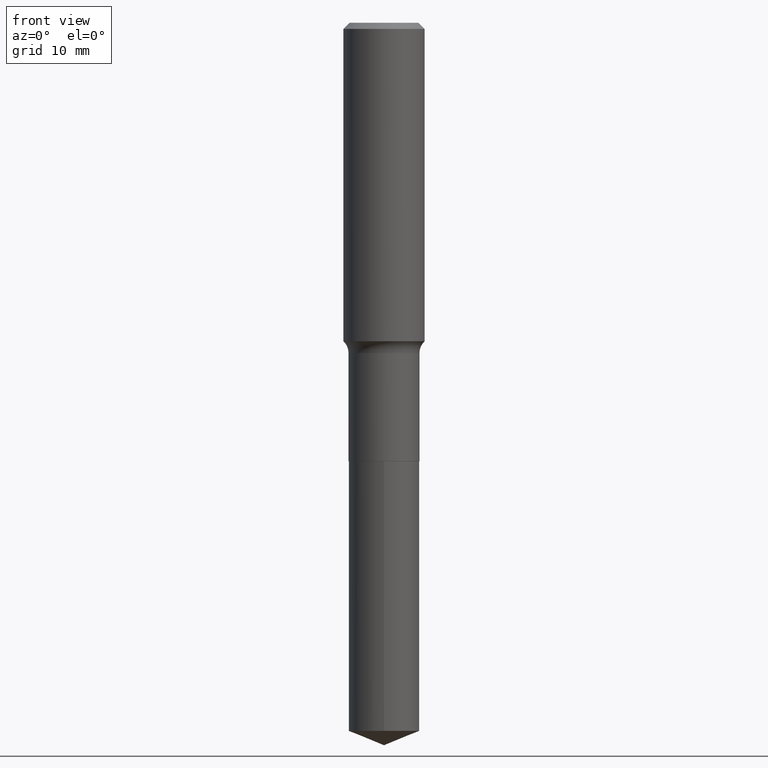
[diagram: clean part render]
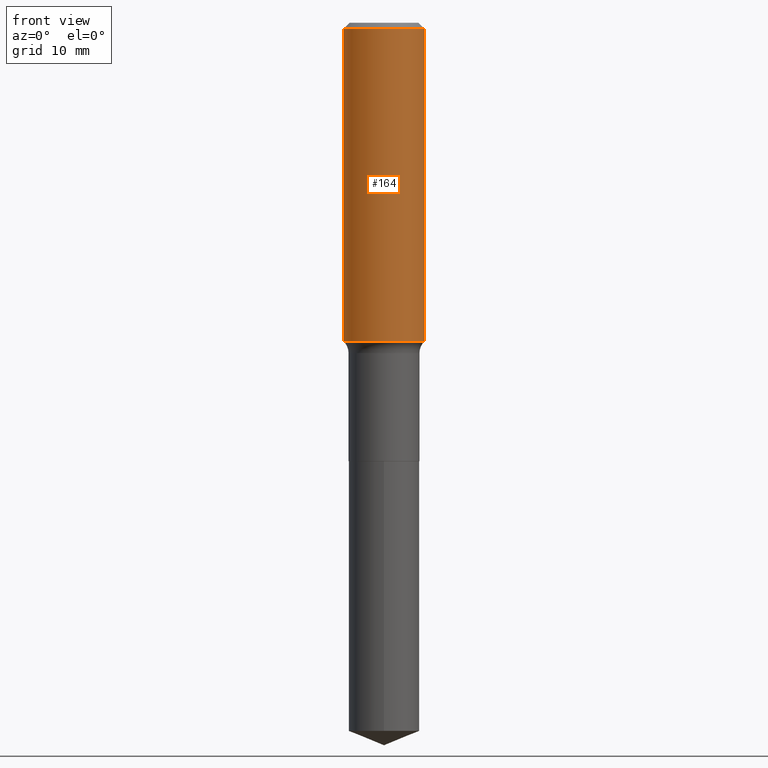
[diagram: same view with one face highlighted and labeled with its STEP entity id]
A machine part, front view. The second image highlights one B-rep face of the part: STEP entity #164.
In plain terms, the highlighted cylindrical surface (partial cylindrical patch) has radius 5 mm, axis along (-0, 0, 1).
Its self-contained STEP definition (entity closure, byte-faithful):
#25 = ORIENTED_EDGE ( 'NONE', *, *, #135, .T. ) ;
#42 = VERTEX_POINT ( 'NONE', #227 ) ;
#48 = EDGE_CURVE ( 'NONE', #153, #395, #440, .T. ) ;
#69 = DIRECTION ( 'NONE',  ( 1.000000000000000000, -6.982962677686266711E-15, 0.000000000000000000 ) ) ;
#85 = AXIS2_PLACEMENT_3D ( 'NONE', #469, #473, #130 ) ;
#93 = CARTESIAN_POINT ( 'NONE',  ( 0.1968500000000001082, -1.374596203102542397E-15, 9.598753983154305062E-30 ) ) ;
#102 = CARTESIAN_POINT ( 'NONE',  ( 0.000000000000000000, 0.000000000000000000, 0.000000000000000000 ) ) ;
#113 = CIRCLE ( 'NONE', #379, 0.1968500000000000527 ) ;
#130 = DIRECTION ( 'NONE',  ( 1.000000000000000000, -6.982962677686265922E-15, 0.000000000000000000 ) ) ;
#135 = EDGE_CURVE ( 'NONE', #395, #200, #330, .T. ) ;
#142 = ORIENTED_EDGE ( 'NONE', *, *, #282, .F. ) ;
#153 = VERTEX_POINT ( 'NONE', #179 ) ;
#164 = ADVANCED_FACE ( 'NONE', ( #219 ), #195, .T. ) ;
#179 = CARTESIAN_POINT ( 'NONE',  ( -0.1968500000000002192, -3.994653248450672985E-15, -1.544718731213796659 ) ) ;
#184 = EDGE_CURVE ( 'NONE', #42, #200, #113, .T. ) ;
#195 = CYLINDRICAL_SURFACE ( 'NONE', #335, 0.1968500000000001082 ) ;
#200 = VERTEX_POINT ( 'NONE', #279 ) ;
#206 = ORIENTED_EDGE ( 'NONE', *, *, #184, .F. ) ;
#219 = FACE_OUTER_BOUND ( 'NONE', #421, .T. ) ;
#227 = CARTESIAN_POINT ( 'NONE',  ( -0.1968500000000000527, -1.349522294169803047E-15, -0.02952750000000020289 ) ) ;
#253 = LINE ( 'NONE', #431, #289 ) ;
#260 = DIRECTION ( 'NONE',  ( -2.445468806185136597E-29, 3.491481338843145583E-15, 1.000000000000000000 ) ) ;
#279 = CARTESIAN_POINT ( 'NONE',  ( 0.1968500000000000527, -1.477690918335233688E-15, -0.02952750000000020289 ) ) ;
#282 = EDGE_CURVE ( 'NONE', #153, #42, #253, .T. ) ;
#283 = ORIENTED_EDGE ( 'NONE', *, *, #48, .T. ) ;
#289 = VECTOR ( 'NONE', #479, 39.37007874015748143 ) ;
#330 = LINE ( 'NONE', #93, #477 ) ;
#335 = AXIS2_PLACEMENT_3D ( 'NONE', #102, #260, #337 ) ;
#337 = DIRECTION ( 'NONE',  ( 1.000000000000000000, -6.982962677686266711E-15, 4.876176775795935793E-29 ) ) ;
#356 = CARTESIAN_POINT ( 'NONE',  ( 0.1968500000000002192, -6.767952826896974748E-15, -1.544718731213796659 ) ) ;
#379 = AXIS2_PLACEMENT_3D ( 'NONE', #402, #405, #69 ) ;
#391 = DIRECTION ( 'NONE',  ( -2.445468806185136877E-29, 3.491481338843145188E-15, 1.000000000000000000 ) ) ;
#395 = VERTEX_POINT ( 'NONE', #356 ) ;
#402 = CARTESIAN_POINT ( 'NONE',  ( 7.220858017463212113E-31, -1.030947152326916979E-16, -0.02952750000000020289 ) ) ;
#405 = DIRECTION ( 'NONE',  ( -2.445468806185136597E-29, 3.491481338843145583E-15, 1.000000000000000000 ) ) ;
#421 = EDGE_LOOP ( 'NONE', ( #142, #283, #25, #206 ) ) ;
#431 = CARTESIAN_POINT ( 'NONE',  ( -0.1968500000000001082, 1.398703375343757985E-15, -9.682923725166787881E-30 ) ) ;
#440 = CIRCLE ( 'NONE', #85, 0.1968500000000002192 ) ;
#469 = CARTESIAN_POINT ( 'NONE',  ( 3.777561471513221514E-29, -5.393356623794430773E-15, -1.544718731213796659 ) ) ;
#473 = DIRECTION ( 'NONE',  ( -2.445468806185136597E-29, 3.491481338843145583E-15, 1.000000000000000000 ) ) ;
#477 = VECTOR ( 'NONE', #391, 39.37007874015748143 ) ;
#479 = DIRECTION ( 'NONE',  ( -2.445468806185136877E-29, 3.491481338843145188E-15, 1.000000000000000000 ) ) ;